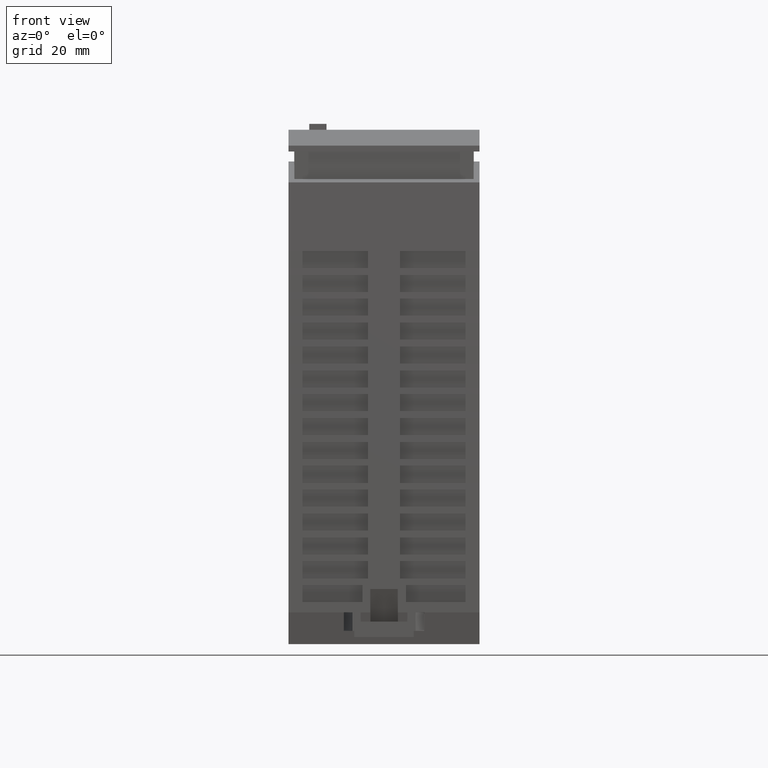
[diagram: clean part render]
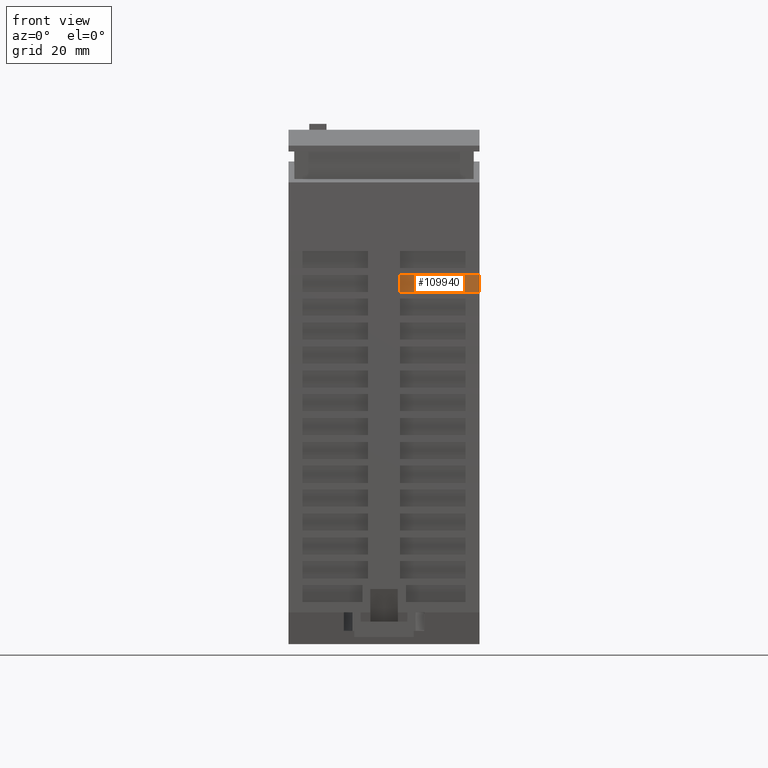
[diagram: same view with one face highlighted and labeled with its STEP entity id]
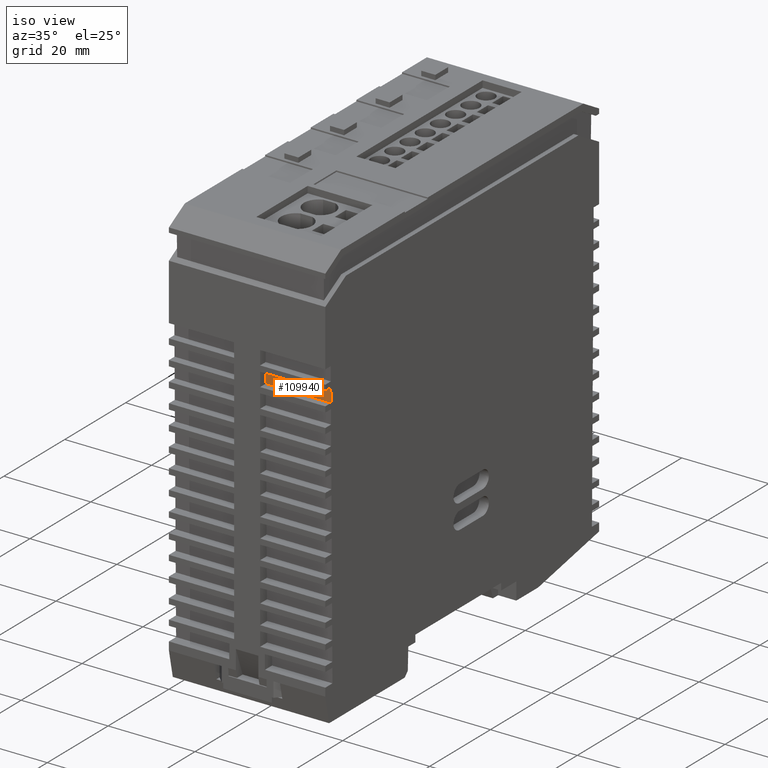
[diagram: same view with one face highlighted and labeled with its STEP entity id]
A machine part, front view. The second image highlights one B-rep face of the part: STEP entity #109940.
A second angle (iso view) of the same face is appended — the face is thin or edge-on in the first view.
In plain terms, the highlighted planar face has unit normal (0, 1, 0.0087).
Its self-contained STEP definition (entity closure, byte-faithful):
#78780=CARTESIAN_POINT('',(7.56626497334943E-8,-43.5170948042076,
68.0097434723465));
#78790=DIRECTION('',(-5.61887817878561E-13,0.99996192306426,
0.00872653548818193));
#78800=DIRECTION('',(1.10357057953765E-9,-0.00872653548818193,
0.99996192306426));
#78810=AXIS2_PLACEMENT_3D('',#78780,#78790,#78800);
#78820=PLANE('',#78810);
#93520=CARTESIAN_POINT('',(36.0000000482931,-43.3006684815822,
43.2097432836006));
#93530=DIRECTION('',(1.10357057953765E-9,-0.00872653548818193,
0.99996192306426));
#93540=VECTOR('',#93530,1.);
#93550=LINE('',#93520,#93540);
#109200=CARTESIAN_POINT('',(21.0000000672786,-43.4507979390324,
60.4128751765898));
#109210=VERTEX_POINT('',#109200);
#109240=CARTESIAN_POINT('',(11.7500000672787,-43.4507979391267,
60.4128751867974));
#109250=DIRECTION('',(1.,1.01922053906574E-11,-1.10352264055657E-9));
#109260=VECTOR('',#109250,1.);
#109270=LINE('',#109240,#109260);
#109280=CARTESIAN_POINT('',(36.0000000672786,-43.4507979388795,
60.412875160037));
#109290=VERTEX_POINT('',#109280);
#109300=EDGE_CURVE('',#109210,#109290,#109270,.T.);
#109590=CARTESIAN_POINT('',(21.0000000708018,-43.4786572817382,
63.6052396544712));
#109600=VERTEX_POINT('',#109590);
#109630=CARTESIAN_POINT('',(21.0000000933204,-43.6567246884827,
84.0097434491739));
#109640=DIRECTION('',(-1.10357057953765E-9,0.00872653548818193,
-0.99996192306426));
#109650=VECTOR('',#109640,1.);
#109660=LINE('',#109630,#109650);
#109670=EDGE_CURVE('',#109600,#109210,#109660,.T.);
#109800=ORIENTED_EDGE('',*,*,#109300,.T.);
#109810=ORIENTED_EDGE('',*,*,#109670,.T.);
#109820=CARTESIAN_POINT('',(11.7500000708018,-43.4786572818325,
63.6052396646787));
#109830=DIRECTION('',(-1.,-1.01922071623181E-11,1.10352284356878E-9));
#109840=VECTOR('',#109830,1.);
#109850=LINE('',#109820,#109840);
#109860=CARTESIAN_POINT('',(36.0000000708018,-43.4786572815853,
63.6052396379183));
#109870=VERTEX_POINT('',#109860);
#109880=EDGE_CURVE('',#109870,#109600,#109850,.T.);
#109890=ORIENTED_EDGE('',*,*,#109880,.T.);
#109900=EDGE_CURVE('',#109290,#109870,#93550,.T.);
#109910=ORIENTED_EDGE('',*,*,#109900,.T.);
#109920=EDGE_LOOP('',(#109910,#109890,#109810,#109800));
#109930=FACE_OUTER_BOUND('',#109920,.T.);
#109940=ADVANCED_FACE('',(#109930),#78820,.F.);